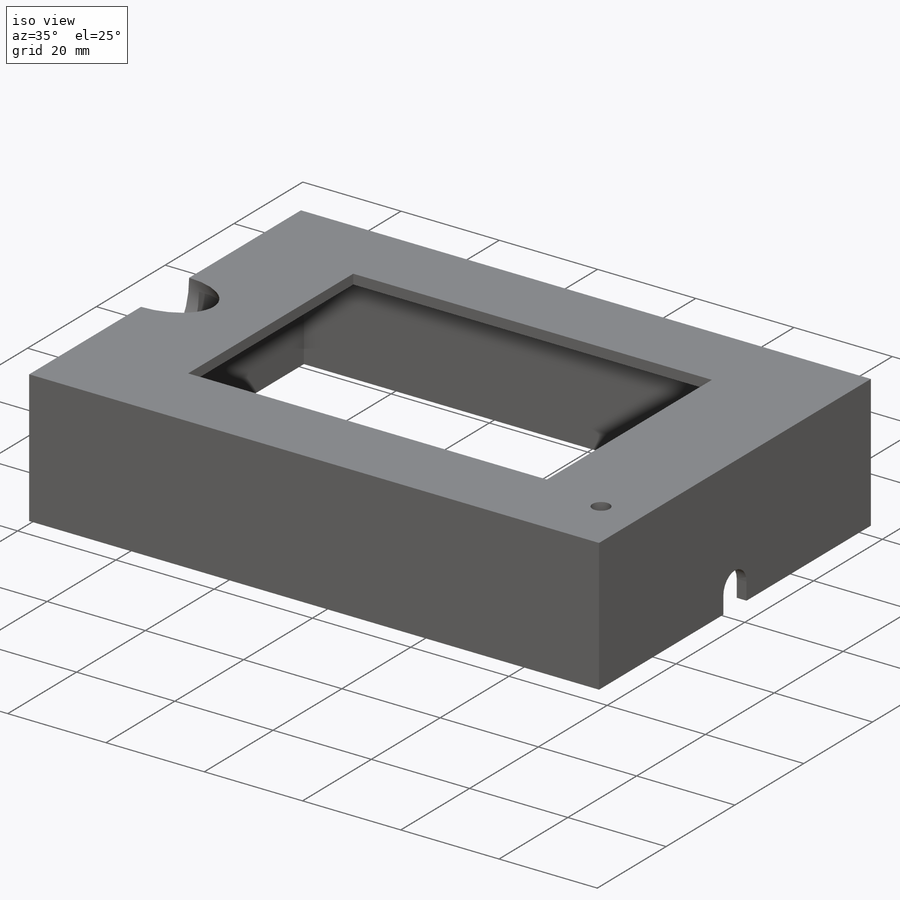
[diagram: iso view]
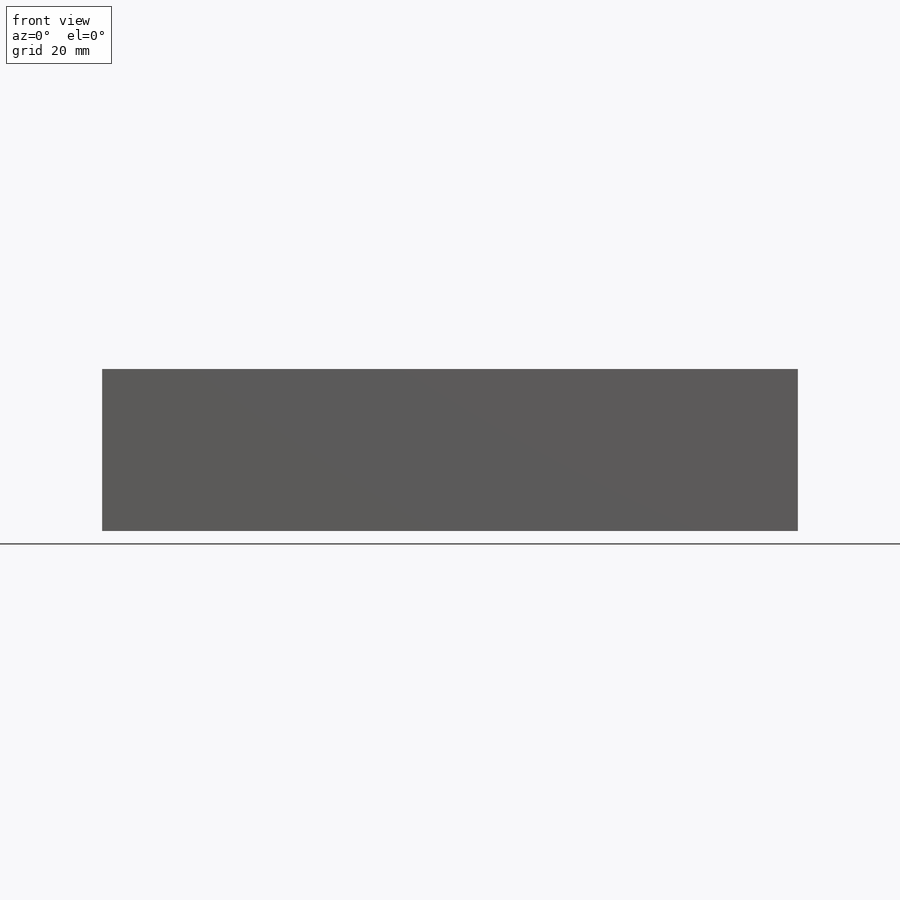
[diagram: front view]
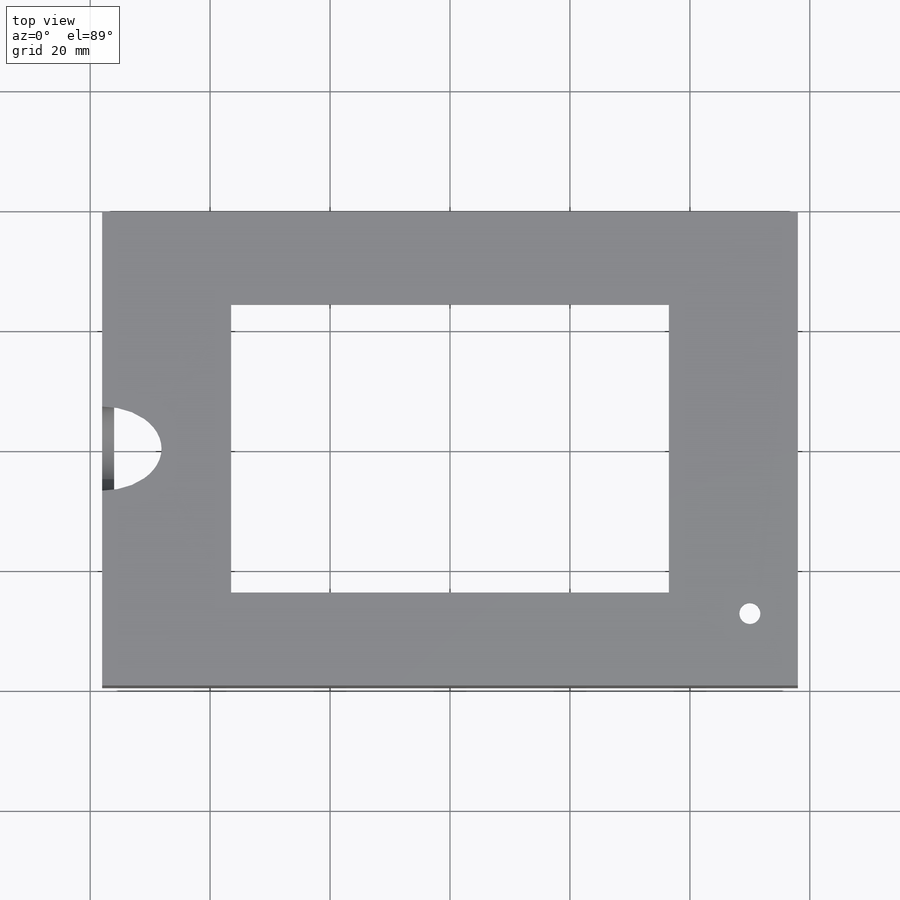
[diagram: top view]
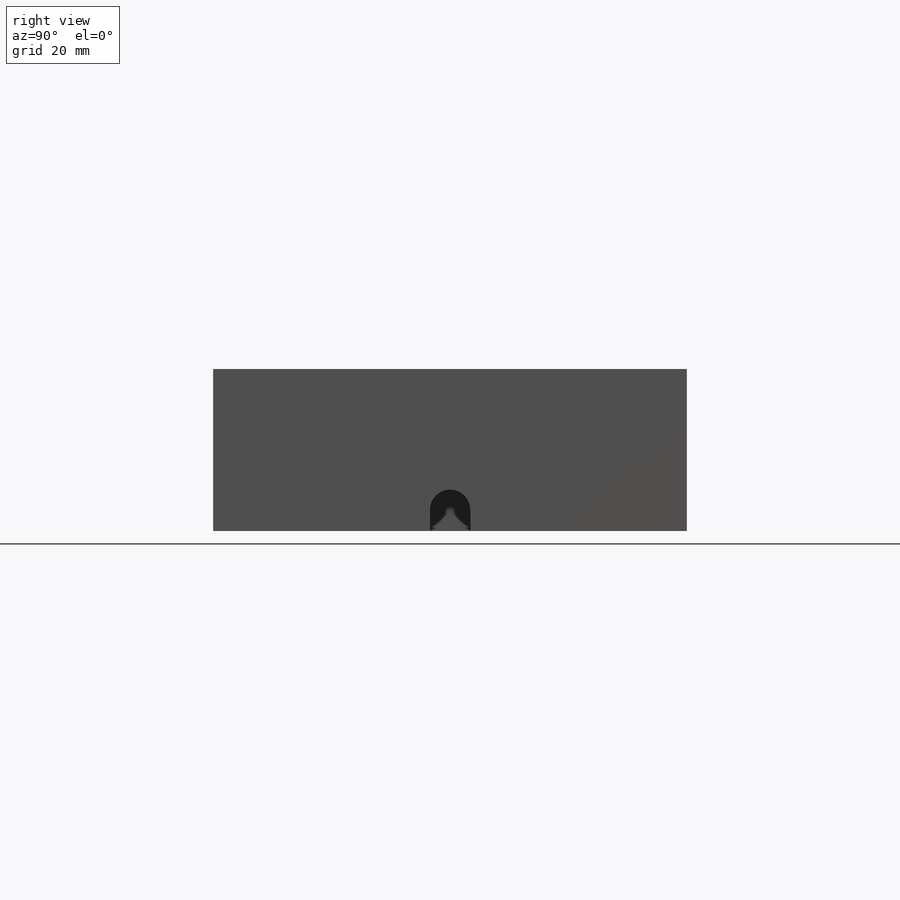
[diagram: right view]
SOLIDWORKS PART (.sldprt)
format: sldprt  version: not decoded by parser v0  size: 206,848 bytes
history: native  units: mm
features: sketch x7, cut_extrude x4, extrude x2, material x1, plane x1 (+13 scaffold rows collapsed)
feature tree (28):
  scaffold x13  (default folders/planes/origin — collapsed)
  material  "Material <not specified>"
  sketch  "Sketch1"  dims[D1=112.0mm D2=75.0mm D3=2.0mm]
  extrude  "Boss-Extrude1"  Depth=25mm
  sketch  "Sketch2"
  extrude  "Boss-Extrude2"  Depth=2mm
  sketch  "Sketch3"  dims[D1=48.0mm D2=73.0mm]
  cut_extrude  "Cut-Extrude1"  [1 undecoded]
  sketch  "Sketch4"  dims[D1=3.5mm D2=12.0mm D3=8.0mm]
  cut_extrude  "Cut-Extrude2"  [1 undecoded]
  sketch  "Sketch5"  dims[D1=27.0mm]
  plane  "Plane1"
  sketch  "Sketch6"  dims[D1=14.0mm]
  cut_extrude  "Cut-Extrude3"  Depth=10mm
  sketch  "Sketch7"  dims[c1.D1=12.0mm c1.D2=12.0mm c2.D1=6.75mm c2.D2=3.5mm]
  cut_extrude  "Cut-Extrude4"  [1 undecoded]
decode coverage: 9 of 13 modeling features carry decoded parameters
note: 3 parameter values undecoded
summary: no parameter record found for 3 features
note: suppression state not decoded; provenance and decode notes live in map.json
